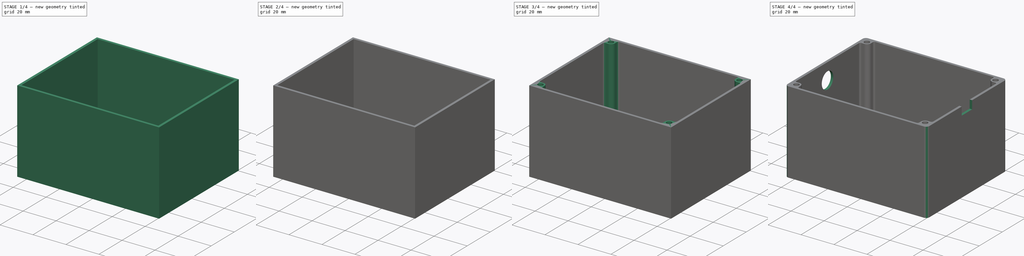
[diagram: build sequence overview — one tinted view per stage of 4, left to right]
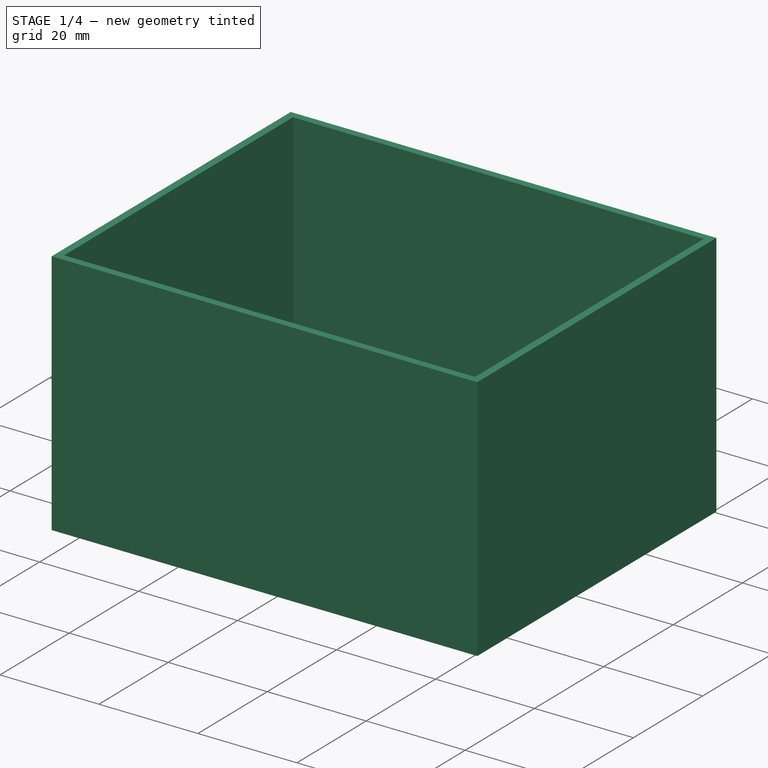
[diagram: stage 1 of 4 — iso view after this stage's code; geometry added in this stage tinted green]
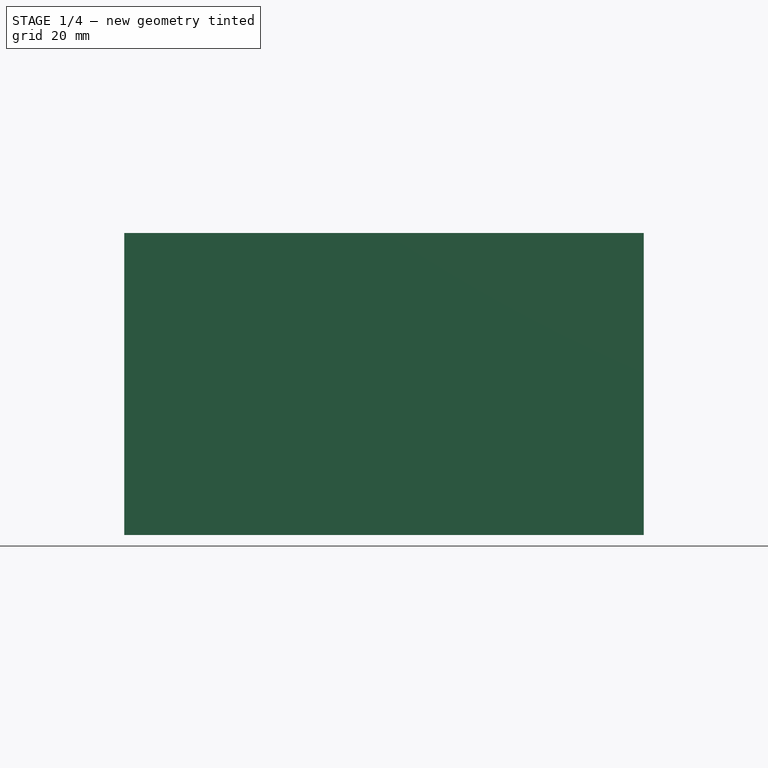
[diagram: stage 1 of 4 — front view after this stage's code; geometry added in this stage tinted green]
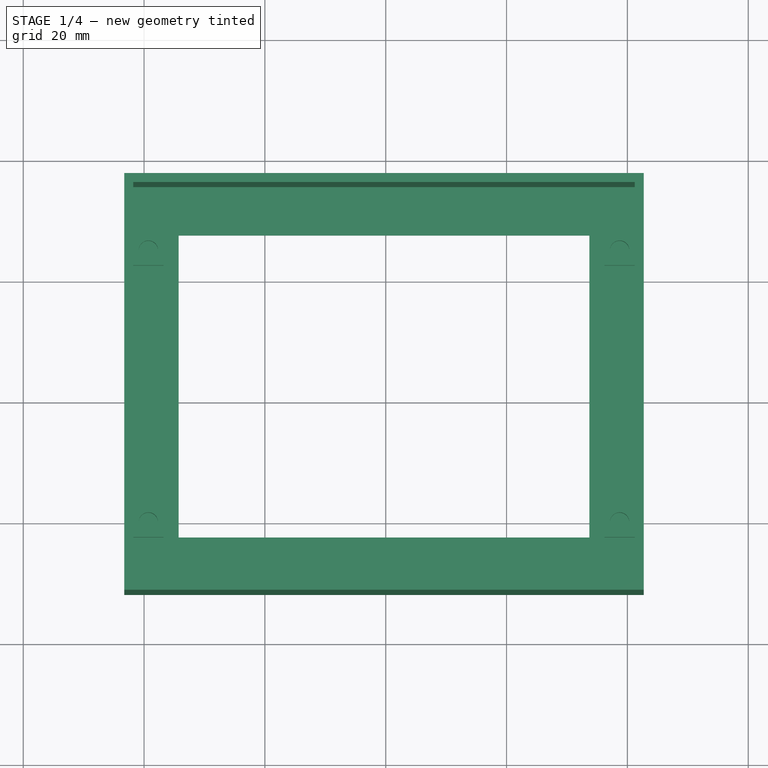
[diagram: stage 1 of 4 — top view after this stage's code; geometry added in this stage tinted green]
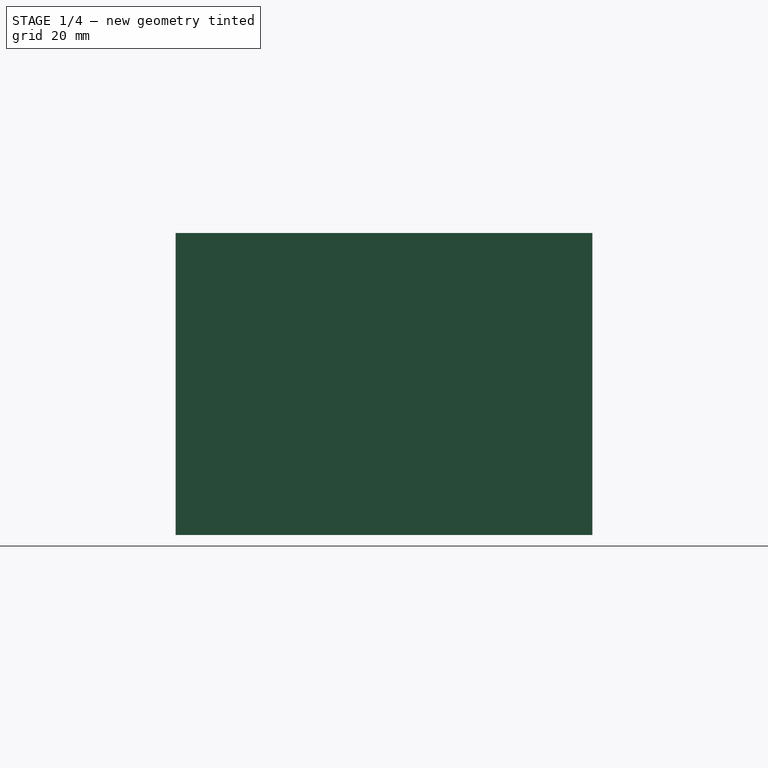
[diagram: stage 1 of 4 — right view after this stage's code; geometry added in this stage tinted green]
FCSTD DOCUMENT  (FreeCAD 1.0R39109 (Git))
Label: model
License: All rights reserved
LicenseURL: https://en.wikipedia.org/wiki/All_rights_reserved
objects: Sketcher::SketchObject×7, PartDesign::Fillet×6, PartDesign::Pocket×4, PartDesign::Pad×3, PartDesign::Chamfer×1, PartDesign::Body×1
note: 57 computed .brp shape members not serialized (recipe doc carries the construction recipe); baked Part::Feature solids carry a one-line shape summary decoded from their .brp

FEATURE [Sketcher::SketchObject] Sketch
  ArcFitTolerance = 1e-06
  AttachmentSupport = -> [XY_Plane]
  FullyConstrained = false
  MakeInternals = false
  MapMode = 5
  sketch-geometry (4):
    g0: LineSegment StartX=-43.2859 StartY=-31.8224 StartZ=0 EndX=42.7141 EndY=-31.8224 EndZ=0
    g1: LineSegment StartX=42.7141 StartY=-31.8224 StartZ=0 EndX=42.7141 EndY=37.1776 EndZ=0
    g2: LineSegment StartX=42.7141 StartY=37.1776 StartZ=0 EndX=-43.2859 EndY=37.1776 EndZ=0
    g3: LineSegment StartX=-43.2859 StartY=37.1776 StartZ=0 EndX=-43.2859 EndY=-31.8224 EndZ=0
  constraints (10):
    c: Coincident(g0,g1)
    c: Coincident(g1,g2)
    c: Coincident(g2,g3)
    c: Coincident(g3,g0)
    c: Horizontal(g0)
    c: Horizontal(g2)
    c: Vertical(g1)
    c: Vertical(g3)
    c: Distance(g2) = 86
    c: Distance(g1) = 69
FEATURE [PartDesign::Pad] Pad
  Direction = (0,0,1)
  Length = 50
  Length2 = 10
  Profile = -> Sketch
  ReferenceAxis = -> Sketch [N_Axis]
  Refine = true
  Suppressed = false
  Type = 0
FEATURE [Sketcher::SketchObject] Sketch001
  ArcFitTolerance = 1e-06
  AttachmentSupport = -> [Pad]
  ExternalGeometry = -> [Pad]
  FullyConstrained = true
  MakeInternals = false
  MapMode = 5
  Placement = pos=(0,0,50) rot=(0,0,1;0rad)
  sketch-geometry (4):
    g0: LineSegment StartX=-41.7859 StartY=35.6776 StartZ=0 EndX=-41.7859 EndY=-30.3224 EndZ=0
    g1: LineSegment StartX=-41.7859 StartY=-30.3224 StartZ=0 EndX=41.2141 EndY=-30.3224 EndZ=0
    g2: LineSegment StartX=41.2141 StartY=-30.3224 StartZ=0 EndX=41.2141 EndY=35.6776 EndZ=0
    g3: LineSegment StartX=41.2141 StartY=35.6776 StartZ=0 EndX=-41.7859 EndY=35.6776 EndZ=0
  constraints (12):
    c: Coincident(g0,g1)
    c: Coincident(g1,g2)
    c: Coincident(g2,g3)
    c: Coincident(g3,g0)
    c: Vertical(g0)
    c: Vertical(g2)
    c: Horizontal(g1)
    c: Horizontal(g3)
    c: DistanceX(g2,g-6) = 1.5
    c: DistanceX(g-5,g0) = 1.5
    c: DistanceY(g2,g-6) = 1.5
    c: DistanceY(g-5,g0) = 1.5
FEATURE [PartDesign::Pocket] Pocket
  BaseFeature = -> Pad
  Direction = (0,0,-1)
  Length = 48.5
  Length2 = 5
  Profile = -> Sketch001
  ReferenceAxis = -> Sketch001 [N_Axis]
  Refine = true
  Suppressed = false
  Type = 0
FEATURE [Sketcher::SketchObject] Sketch002
  ArcFitTolerance = 1e-06
  AttachmentSupport = -> [Pocket]
  ExternalGeometry = -> [Pocket]
  FullyConstrained = true
  MakeInternals = false
  MapMode = 5
  Placement = pos=(0,0,1.5) rot=(0,0,1;0rad)
  sketch-geometry (8):
    g0: LineSegment StartX=-34.2859 StartY=27.6776 StartZ=0 EndX=-34.2859 EndY=-22.3224 EndZ=0
    g1: LineSegment StartX=-34.2859 StartY=-22.3224 StartZ=0 EndX=33.7141 EndY=-22.3224 EndZ=0
    g2: LineSegment StartX=33.7141 StartY=-22.3224 StartZ=0 EndX=33.7141 EndY=27.6776 EndZ=0
    g3: LineSegment StartX=33.7141 StartY=27.6776 StartZ=0 EndX=-34.2859 EndY=27.6776 EndZ=0
    g4: LineSegment [constr] StartX=33.7141 StartY=-22.3224 StartZ=0 EndX=41.2141 EndY=-30.3224 EndZ=0
    g5: LineSegment [constr] StartX=-34.2859 StartY=27.6776 StartZ=0 EndX=-41.7859 EndY=35.6776 EndZ=0
    g6: LineSegment [constr] StartX=-34.2859 StartY=-22.3224 StartZ=0 EndX=-41.7859 EndY=-30.3224 EndZ=0
    g7: LineSegment [constr] StartX=33.7141 StartY=27.6776 StartZ=0 EndX=41.2141 EndY=35.6776 EndZ=0
  constraints (20):
    c: Coincident(g0,g1)
    c: Coincident(g1,g2)
    c: Coincident(g2,g3)
    c: Coincident(g3,g0)
    c: Vertical(g0)
    c: Vertical(g2)
    c: Horizontal(g1)
    c: Horizontal(g3)
    c: Distance(g3) = 68
    c: Distance(g2) = 50
    c: Coincident(g4,g1)
    c: Coincident(g4,g-5)
    c: Coincident(g5,g0)
    c: Coincident(g5,g-6)
    c: Coincident(g6,g0)
    c: Coincident(g6,g-6)
    c: Coincident(g7,g2)
    c: Coincident(g7,g-4)
    c: Equal(g5,g4)
    c: Equal(g6,g7)
FEATURE [PartDesign::Pocket] Pocket001
  BaseFeature = -> Pocket
  Direction = (0,0,-1)
  Length = 5
  Length2 = 5
  Profile = -> Sketch002 [Edge2,Edge1,Edge4,Edge3]
  ReferenceAxis = -> Sketch002 [N_Axis]
  Refine = true
  Suppressed = false
  Type = 0
FEATURE [Sketcher::SketchObject] Sketch003
  ArcFitTolerance = 1e-06
  AttachmentSupport = -> [Pocket001]
  ExternalGeometry = -> [Pocket001]
  FullyConstrained = false
  MakeInternals = false
  MapMode = 5
  Placement = pos=(0,0,1.5) rot=(0,0,1;0rad)
  sketch-geometry (32):
    g0: LineSegment StartX=-36.7859 StartY=-17.3224 StartZ=0 EndX=-41.7859 EndY=-17.3224 EndZ=0
    g1: LineSegment StartX=-41.7859 StartY=-17.3224 StartZ=0 EndX=-41.7859 EndY=-22.3224 EndZ=0
    g2: LineSegment StartX=-41.7859 StartY=-22.3224 StartZ=0 EndX=-36.7859 EndY=-22.3224 EndZ=0
    g3: LineSegment StartX=-36.7859 StartY=-22.3224 StartZ=0 EndX=-36.7859 EndY=-17.3224 EndZ=0
    g4: LineSegment StartX=41.2141 StartY=27.6776 StartZ=0 EndX=36.2141 EndY=27.6776 EndZ=0
    g5: LineSegment StartX=36.2141 StartY=27.6776 StartZ=0 EndX=36.2141 EndY=22.6776 EndZ=0
    g6: LineSegment StartX=36.2141 StartY=22.6776 StartZ=0 EndX=41.2141 EndY=22.6776 EndZ=0
    g7: LineSegment StartX=41.2141 StartY=22.6776 StartZ=0 EndX=41.2141 EndY=27.6776 EndZ=0
    g8: LineSegment StartX=41.2141 StartY=-17.3224 StartZ=0 EndX=36.2141 EndY=-17.3224 EndZ=0
    g9: LineSegment StartX=36.2141 StartY=-17.3224 StartZ=0 EndX=36.2141 EndY=-22.3224 EndZ=0
    g10: LineSegment StartX=36.2141 StartY=-22.3224 StartZ=0 EndX=41.2141 EndY=-22.3224 EndZ=0
    g11: LineSegment StartX=41.2141 StartY=-22.3224 StartZ=0 EndX=41.2141 EndY=-17.3224 EndZ=0
    g12: LineSegment StartX=-36.7859 StartY=27.6776 StartZ=0 EndX=-41.7859 EndY=27.6776 EndZ=0
    g13: LineSegment StartX=-41.7859 StartY=27.6776 StartZ=0 EndX=-41.7859 EndY=22.6776 EndZ=0
    g14: LineSegment StartX=-41.7859 StartY=22.6776 StartZ=0 EndX=-36.7859 EndY=22.6776 EndZ=0
    g15: LineSegment StartX=-36.7859 StartY=22.6776 StartZ=0 EndX=-36.7859 EndY=27.6776 EndZ=0
    g16: Circle CenterX=-39.2859 CenterY=25.1776 CenterZ=0 NormalX=0 NormalY=0 NormalZ=1 AngleXU=0 Radius=1.6
    g17: Circle CenterX=-39.2859 CenterY=-19.8224 CenterZ=0 NormalX=0 NormalY=0 NormalZ=1 AngleXU=0 Radius=1.6
    g18: Circle CenterX=38.7141 CenterY=25.1776 CenterZ=0 NormalX=0 NormalY=0 NormalZ=1 AngleXU=0 Radius=1.6
    g19: Circle CenterX=38.7141 CenterY=-19.8224 CenterZ=0 NormalX=0 NormalY=0 NormalZ=1 AngleXU=0 Radius=1.6
    g20: LineSegment [constr] StartX=38.7141 StartY=-19.8224 StartZ=0 EndX=36.2141 EndY=-17.3224 EndZ=0
    g21: LineSegment [constr] StartX=38.7141 StartY=-19.8224 StartZ=0 EndX=41.2141 EndY=-22.3224 EndZ=0
    g22: LineSegment [constr] StartX=-39.2859 StartY=25.1776 StartZ=0 EndX=-41.7859 EndY=27.6776 EndZ=0
    g23: LineSegment [constr] StartX=-39.2859 StartY=25.1776 StartZ=0 EndX=-36.7859 EndY=22.6776 EndZ=0
    g24: LineSegment [constr] StartX=-39.2859 StartY=-19.8224 StartZ=0 EndX=-41.7859 EndY=-17.3224 EndZ=0
    g25: LineSegment [constr] StartX=-39.2859 StartY=-19.8224 StartZ=0 EndX=-36.7859 EndY=-22.3224 EndZ=0
    g26: LineSegment [constr] StartX=38.7141 StartY=25.1776 StartZ=0 EndX=36.2141 EndY=27.6776 EndZ=0
    g27: LineSegment [constr] StartX=38.7141 StartY=25.1776 StartZ=0 EndX=41.2141 EndY=22.6776 EndZ=0
    g28: LineSegment [constr] StartX=38.7141 StartY=25.1776 StartZ=0 EndX=41.2141 EndY=27.6776 EndZ=0
    g29: LineSegment [constr] StartX=38.7141 StartY=-19.8224 StartZ=0 EndX=41.2141 EndY=-17.3224 EndZ=0
    g30: LineSegment [constr] StartX=-39.2859 StartY=-19.8224 StartZ=0 EndX=-36.7859 EndY=-17.3224 EndZ=0
    g31: LineSegment [constr] StartX=-39.2859 StartY=25.1776 StartZ=0 EndX=-36.7859 EndY=27.6776 EndZ=0
  constraints (80):
    c: Coincident(g0,g1)
    c: Coincident(g1,g2)
    c: Coincident(g2,g3)
    c: Coincident(g3,g0)
    c: Horizontal(g0)
    c: Horizontal(g2)
    c: Vertical(g1)
    c: Vertical(g3)
    c: Distance(g1,g3) = 5
    c: Distance(g0,g2) = 5
    c: Coincident(g4,g5)
    c: Coincident(g5,g6)
    c: Coincident(g6,g7)
    c: Coincident(g7,g4)
    c: Horizontal(g4)
    c: Horizontal(g6)
    c: Vertical(g5)
    c: Vertical(g7)
    c: Distance(g5,g7) = 5
    c: Distance(g4,g6) = 5
    c: Coincident(g8,g9)
    c: Coincident(g9,g10)
    c: Coincident(g10,g11)
    c: Coincident(g11,g8)
    c: Horizontal(g8)
    c: Horizontal(g10)
    c: Vertical(g9)
    c: Vertical(g11)
    c: Distance(g9,g11) = 5
    c: Distance(g8,g10) = 5
    c: Coincident(g12,g13)
    c: Coincident(g13,g14)
    c: Coincident(g14,g15)
    c: Coincident(g15,g12)
    c: Horizontal(g12)
    c: Horizontal(g14)
    c: Vertical(g13)
    c: Vertical(g15)
    c: Distance(g13,g15) = 5
    c: Distance(g12,g14) = 5
    c: DistanceX(g12,g-3) = 2.5
    c: DistanceY(g12,g-3) = 0
    c: DistanceX(g2,g-5) = 2.5
    c: DistanceX(g-6,g9) = 2.5
    c: DistanceX(g-4,g4) = 2.5
    c: DistanceY(g-4,g4) = 0
    c: DistanceY(g9,g-6) = 0
    c: DistanceY(g-5,g2) = 0
    c: Diameter(g19) = 3.2
    c: Coincident(g20,g19)
    c: Coincident(g20,g8)
    c: Coincident(g21,g19)
    c: Coincident(g21,g10)
    c: Coincident(g22,g12)
    c: Coincident(g23,g16)
    c: Coincident(g23,g14)
    c: Coincident(g24,g17)
    c: Coincident(g24,g0)
    c: Coincident(g25,g17)
    c: Coincident(g25,g2)
    c: Coincident(g26,g18)
    c: Coincident(g26,g4)
    c: Coincident(g27,g18)
    c: Coincident(g27,g6)
    c: Equal(g22,g20)
    c: Equal(g23,g21)
    c: Equal(g20,g21)
    c: Equal(g26,g27)
    c: Coincident(g28,g18)
    c: Coincident(g28,g4)
    c: Equal(g28,g26)
    c: Coincident(g29,g19)
    c: Coincident(g29,g8)
    c: Coincident(g30,g17)
    c: Coincident(g30,g0)
    c: Equal(g30,g25)
    c: Coincident(g31,g12)
    c: Diameter(g18) = 3.2
    c: Diameter(g16) = 3.2
    c: Diameter(g17) = 3.2
FEATURE [PartDesign::Pad] Pad001
  BaseFeature = -> Pocket001
  Direction = (0,0,1)
  Length = 4
  Length2 = 10
  Profile = -> Sketch003
  ReferenceAxis = -> Sketch003 [N_Axis]
  Refine = true
  Suppressed = false
  Type = 0
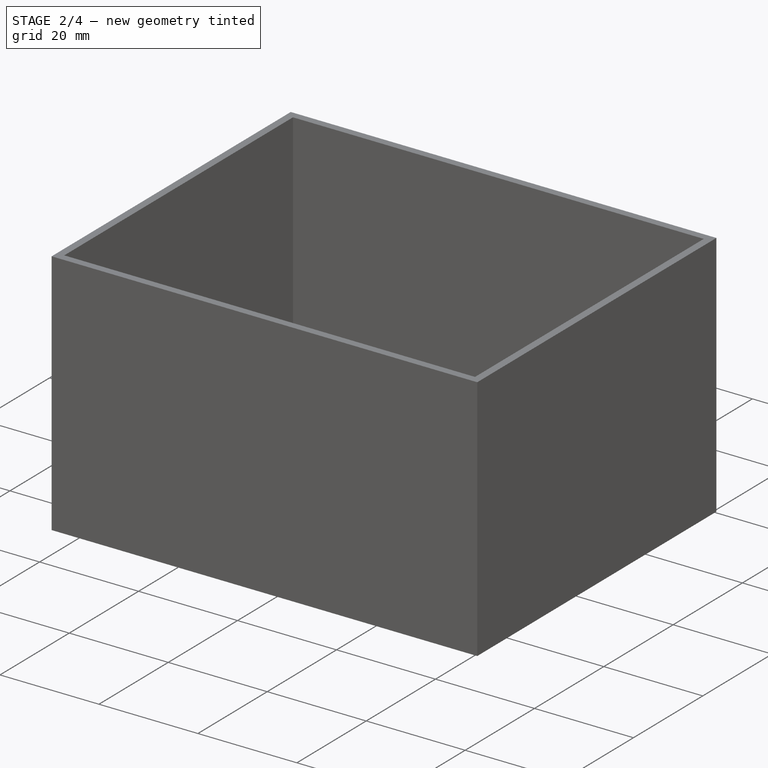
[diagram: stage 2 of 4 — iso view after this stage's code; geometry added in this stage tinted green]
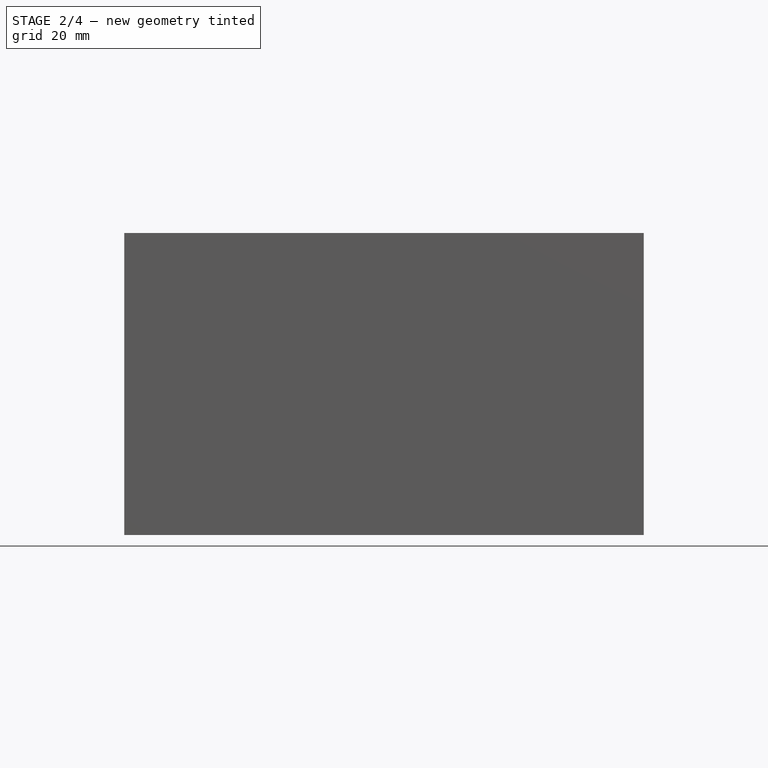
[diagram: stage 2 of 4 — front view after this stage's code; geometry added in this stage tinted green]
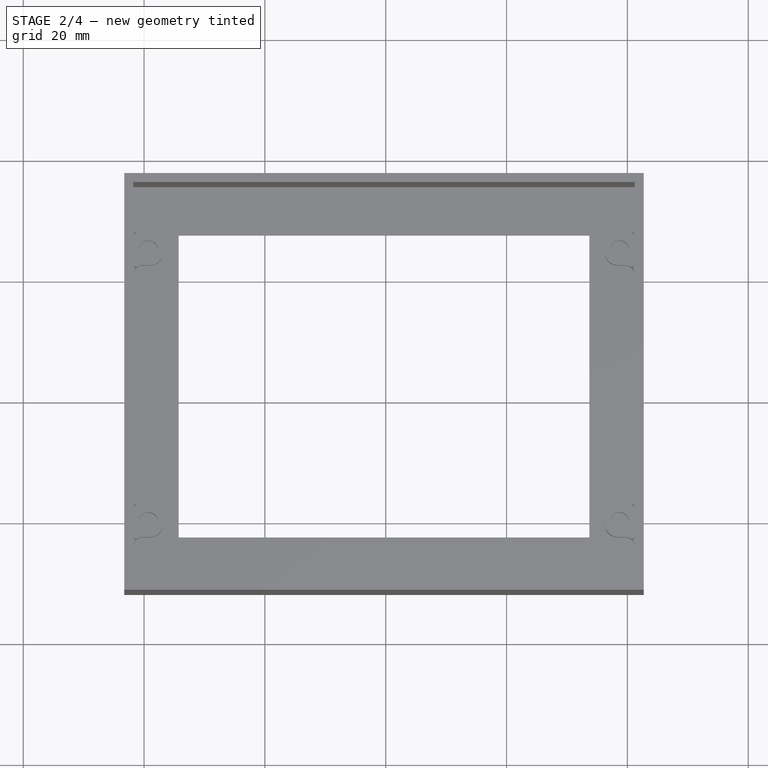
[diagram: stage 2 of 4 — top view after this stage's code; geometry added in this stage tinted green]
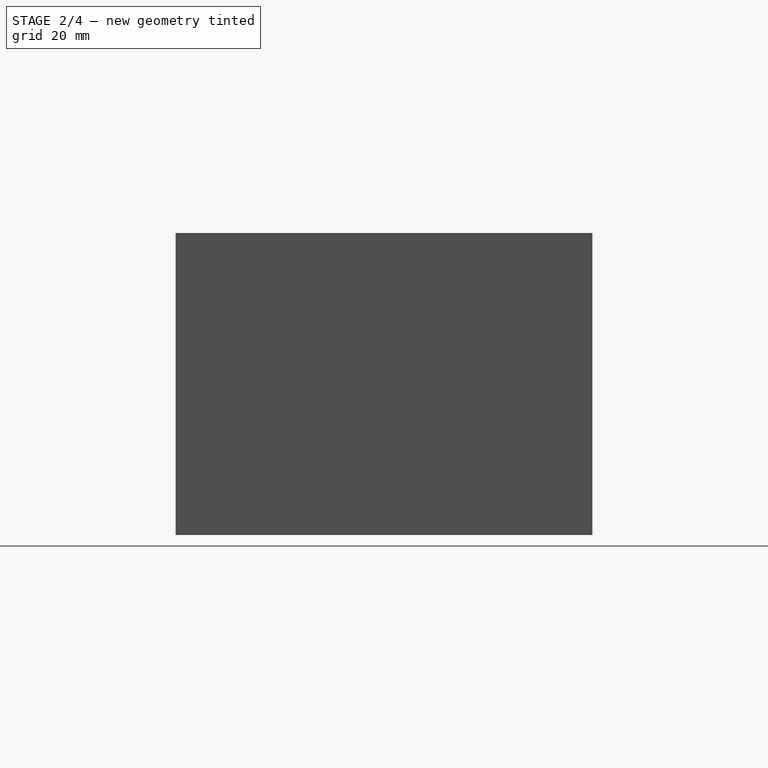
[diagram: stage 2 of 4 — right view after this stage's code; geometry added in this stage tinted green]
FEATURE [PartDesign::Fillet] Fillet
  Base = -> Pad001 [Edge76,Edge71]
  BaseFeature = -> Pad001
  Radius = 2.25
  Refine = true
  SupportTransform = false
  Suppressed = false
  UseAllEdges = false
FEATURE [PartDesign::Fillet] Fillet001
  Base = -> Fillet [Edge42,Edge46,Edge67,Edge63,Edge61,Edge65]
  BaseFeature = -> Fillet
  Radius = 2.25
  Refine = true
  SupportTransform = false
  Suppressed = false
  UseAllEdges = false
FEATURE [PartDesign::Fillet] Fillet002
  Base = -> Fillet001 [Edge66,Edge64,Edge67,Edge69,Edge42,Edge44,Edge34,Edge40]
  BaseFeature = -> Fillet001
  Radius = 1.5
  Refine = true
  SupportTransform = false
  Suppressed = false
  UseAllEdges = false
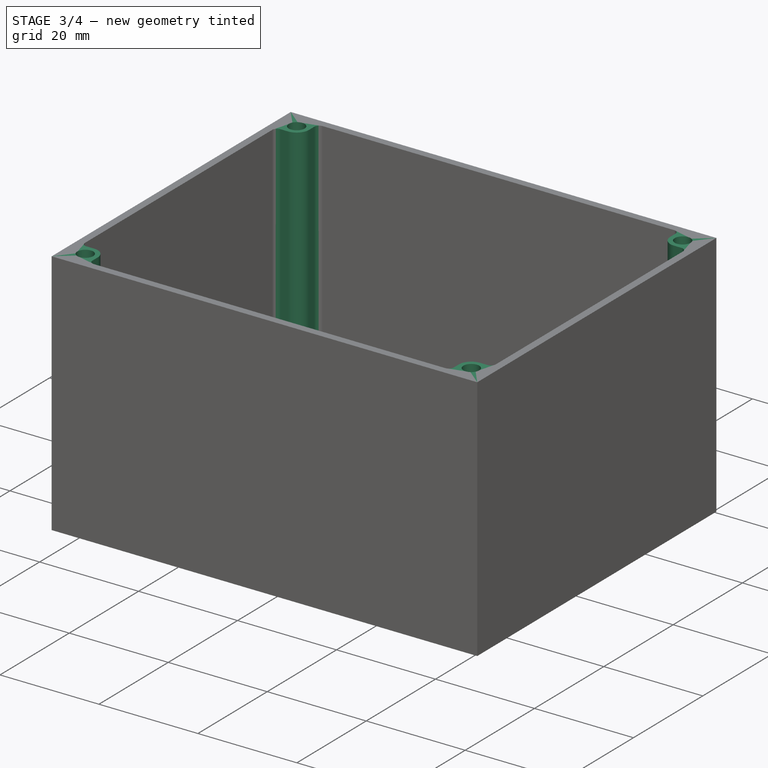
[diagram: stage 3 of 4 — iso view after this stage's code; geometry added in this stage tinted green]
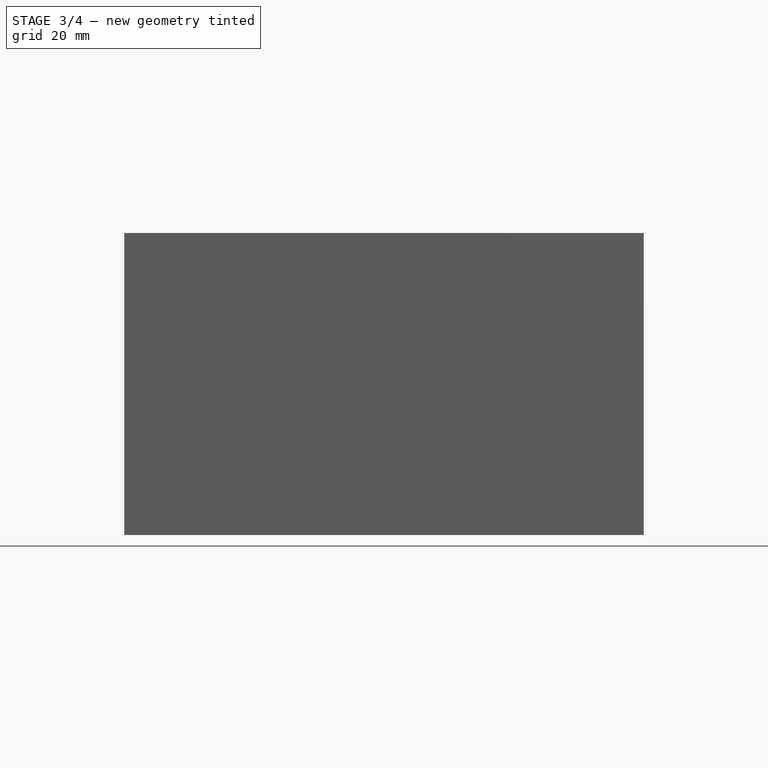
[diagram: stage 3 of 4 — front view after this stage's code; geometry added in this stage tinted green]
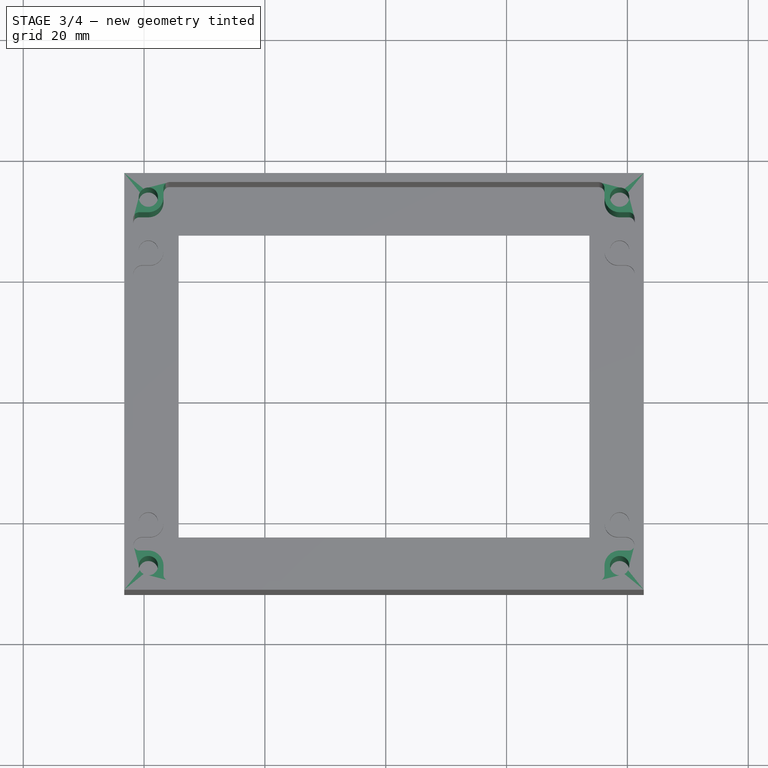
[diagram: stage 3 of 4 — top view after this stage's code; geometry added in this stage tinted green]
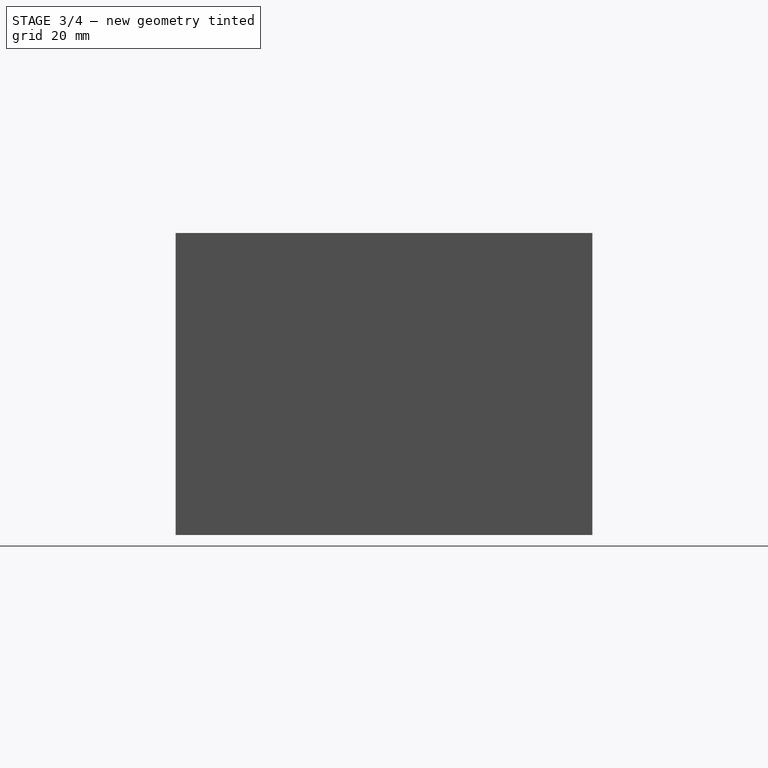
[diagram: stage 3 of 4 — right view after this stage's code; geometry added in this stage tinted green]
FEATURE [Sketcher::SketchObject] Sketch004
  ArcFitTolerance = 1e-06
  AttachmentSupport = -> [Fillet002]
  ExternalGeometry = -> [Fillet002]
  FullyConstrained = true
  MakeInternals = false
  MapMode = 5
  Placement = pos=(0,0,1.5) rot=(0,0,1;0rad)
  sketch-geometry (32):
    g0: LineSegment StartX=-41.7859 StartY=-30.3224 StartZ=0 EndX=-36.7859 EndY=-30.3224 EndZ=0
    g1: LineSegment StartX=-36.7859 StartY=-30.3224 StartZ=0 EndX=-36.7859 EndY=-25.3224 EndZ=0
    g2: LineSegment StartX=-36.7859 StartY=-25.3224 StartZ=0 EndX=-41.7859 EndY=-25.3224 EndZ=0
    g3: LineSegment StartX=-41.7859 StartY=-25.3224 StartZ=0 EndX=-41.7859 EndY=-30.3224 EndZ=0
    g4: LineSegment StartX=-41.7859 StartY=35.6776 StartZ=0 EndX=-41.7859 EndY=30.6776 EndZ=0
    g5: LineSegment StartX=-41.7859 StartY=30.6776 StartZ=0 EndX=-36.7859 EndY=30.6776 EndZ=0
    g6: LineSegment StartX=-36.7859 StartY=30.6776 StartZ=0 EndX=-36.7859 EndY=35.6776 EndZ=0
    g7: LineSegment StartX=-36.7859 StartY=35.6776 StartZ=0 EndX=-41.7859 EndY=35.6776 EndZ=0
    g8: LineSegment StartX=41.2141 StartY=35.6776 StartZ=0 EndX=36.2141 EndY=35.6776 EndZ=0
    g9: LineSegment StartX=36.2141 StartY=35.6776 StartZ=0 EndX=36.2141 EndY=30.6776 EndZ=0
    g10: LineSegment StartX=36.2141 StartY=30.6776 StartZ=0 EndX=41.2141 EndY=30.6776 EndZ=0
    g11: LineSegment StartX=41.2141 StartY=30.6776 StartZ=0 EndX=41.2141 EndY=35.6776 EndZ=0
    g12: LineSegment StartX=41.2141 StartY=-30.3224 StartZ=0 EndX=41.2141 EndY=-25.3224 EndZ=0
    g13: LineSegment StartX=41.2141 StartY=-25.3224 StartZ=0 EndX=36.2141 EndY=-25.3224 EndZ=0
    g14: LineSegment StartX=36.2141 StartY=-25.3224 StartZ=0 EndX=36.2141 EndY=-30.3224 EndZ=0
    g15: LineSegment StartX=36.2141 StartY=-30.3224 StartZ=0 EndX=41.2141 EndY=-30.3224 EndZ=0
    g16: Circle CenterX=38.7141 CenterY=-27.8224 CenterZ=0 NormalX=0 NormalY=0 NormalZ=1 AngleXU=0 Radius=1.6
    g17: Circle CenterX=-39.2859 CenterY=-27.8224 CenterZ=0 NormalX=0 NormalY=0 NormalZ=1 AngleXU=0 Radius=1.6
    g18: Circle CenterX=-39.2859 CenterY=33.1776 CenterZ=0 NormalX=0 NormalY=0 NormalZ=1 AngleXU=0 Radius=1.6
    g19: Circle CenterX=38.7141 CenterY=33.1776 CenterZ=0 NormalX=0 NormalY=0 NormalZ=1 AngleXU=0 Radius=1.6
    g20: LineSegment [constr] StartX=-39.2859 StartY=33.1776 StartZ=0 EndX=-41.7859 EndY=35.6776 EndZ=0
    g21: LineSegment [constr] StartX=-39.2859 StartY=33.1776 StartZ=0 EndX=-36.7859 EndY=30.6776 EndZ=0
    g22: LineSegment [constr] StartX=-39.2859 StartY=33.1776 StartZ=0 EndX=-36.7859 EndY=35.6776 EndZ=0
    g23: LineSegment [constr] StartX=-39.2859 StartY=-27.8224 StartZ=0 EndX=-41.7859 EndY=-25.3224 EndZ=0
    g24: LineSegment [constr] StartX=-39.2859 StartY=-27.8224 StartZ=0 EndX=-36.7859 EndY=-25.3224 EndZ=0
    g25: LineSegment [constr] StartX=-39.2859 StartY=-27.8224 StartZ=0 EndX=-36.7859 EndY=-30.3224 EndZ=0
    g26: LineSegment [constr] StartX=38.7141 StartY=-27.8224 StartZ=0 EndX=36.2141 EndY=-25.3224 EndZ=0
    g27: LineSegment [constr] StartX=38.7141 StartY=-27.8224 StartZ=0 EndX=41.2141 EndY=-25.3224 EndZ=0
    g28: LineSegment [constr] StartX=38.7141 StartY=-27.8224 StartZ=0 EndX=41.2141 EndY=-30.3224 EndZ=0
    g29: LineSegment [constr] StartX=38.7141 StartY=33.1776 StartZ=0 EndX=36.2141 EndY=35.6776 EndZ=0
    g30: LineSegment [constr] StartX=38.7141 StartY=33.1776 StartZ=0 EndX=41.2141 EndY=35.6776 EndZ=0
    g31: LineSegment [constr] StartX=38.7141 StartY=33.1776 StartZ=0 EndX=41.2141 EndY=30.6776 EndZ=0
  constraints (80):
    c: Coincident(g0,g1)
    c: Coincident(g1,g2)
    c: Coincident(g2,g3)
    c: Coincident(g3,g0)
    c: Horizontal(g0)
    c: Horizontal(g2)
    c: Vertical(g1)
    c: Vertical(g3)
    c: Distance(g1,g3) = 5
    c: Distance(g0,g2) = 5
    c: Coincident(g0,g-5)
    c: Coincident(g4,g5)
    c: Coincident(g5,g6)
    c: Coincident(g6,g7)
    c: Coincident(g7,g4)
    c: Vertical(g4)
    c: Vertical(g6)
    c: Horizontal(g5)
    c: Horizontal(g7)
    c: Distance(g4,g6) = 5
    c: Distance(g5,g7) = 5
    c: Coincident(g4,g-5)
    c: Coincident(g8,g9)
    c: Coincident(g9,g10)
    c: Coincident(g10,g11)
    c: Coincident(g11,g8)
    c: Horizontal(g8)
    c: Horizontal(g10)
    c: Vertical(g9)
    c: Vertical(g11)
    c: Distance(g9,g11) = 5
    c: Distance(g8,g10) = 5
    c: Coincident(g8,g-4)
    c: Coincident(g12,g13)
    c: Coincident(g13,g14)
    c: Coincident(g14,g15)
    c: Coincident(g15,g12)
    c: Vertical(g12)
    c: Vertical(g14)
    c: Horizontal(g13)
    c: Horizontal(g15)
    c: Distance(g12,g14) = 5
    c: Distance(g13,g15) = 5
    c: Coincident(g12,g-6)
    c: Diameter(g16) = 3.2
    c: Diameter(g17) = 3.2
    c: Diameter(g18) = 3.2
    c: Diameter(g19) = 3.2
    c: Coincident(g20,g18)
    c: Coincident(g20,g4)
    c: Coincident(g21,g18)
    c: Coincident(g21,g5)
    c: Coincident(g22,g18)
    c: Coincident(g22,g6)
    c: Equal(g20,g21)
    c: Equal(g20,g22)
    c: Coincident(g23,g17)
    c: Coincident(g23,g2)
    c: Coincident(g24,g17)
    c: Coincident(g24,g1)
    c: Coincident(g25,g17)
    c: Coincident(g25,g0)
    c: Equal(g23,g24)
    c: Equal(g23,g25)
    c: Coincident(g26,g16)
    c: Coincident(g26,g13)
    c: Coincident(g27,g16)
    c: Coincident(g27,g12)
    c: Coincident(g28,g16)
    c: Coincident(g28,g12)
    c: Equal(g26,g27)
    c: Equal(g26,g28)
    c: Coincident(g29,g19)
    c: Coincident(g29,g8)
    c: Coincident(g30,g19)
    c: Coincident(g30,g8)
    c: Coincident(g31,g19)
    c: Coincident(g31,g10)
    c: Equal(g29,g31)
    c: Equal(g29,g30)
FEATURE [PartDesign::Pad] Pad002
  BaseFeature = -> Fillet002
  Direction = (0,0,1)
  Length = 48.5
  Length2 = 10
  Profile = -> Sketch004
  ReferenceAxis = -> Sketch004 [N_Axis]
  Refine = true
  Suppressed = false
  Type = 0
FEATURE [PartDesign::Fillet] Fillet003
  Base = -> Pad002 [Edge73,Edge79,Edge123,Edge117]
  BaseFeature = -> Pad002
  Radius = 2.5
  Refine = true
  SupportTransform = false
  Suppressed = false
  UseAllEdges = false
FEATURE [PartDesign::Fillet] Fillet004
  Base = -> Fillet003 [Edge92,Edge142,Edge82,Edge71,Edge54,Edge66,Edge137,Edge65]
  BaseFeature = -> Fillet003
  Radius = 1
  Refine = true
  SupportTransform = false
  Suppressed = false
  UseAllEdges = false
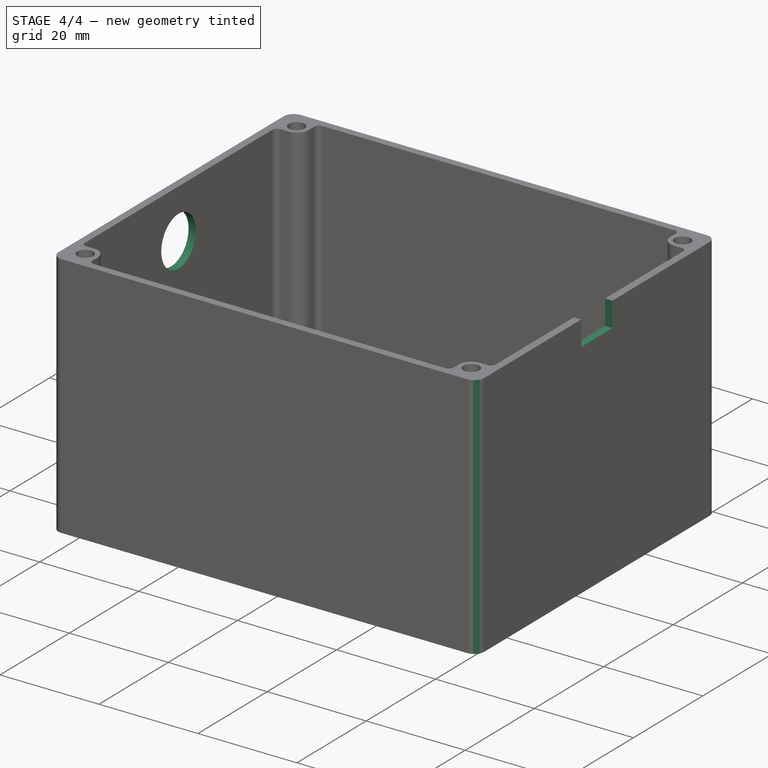
[diagram: stage 4 of 4 — iso view after this stage's code; geometry added in this stage tinted green]
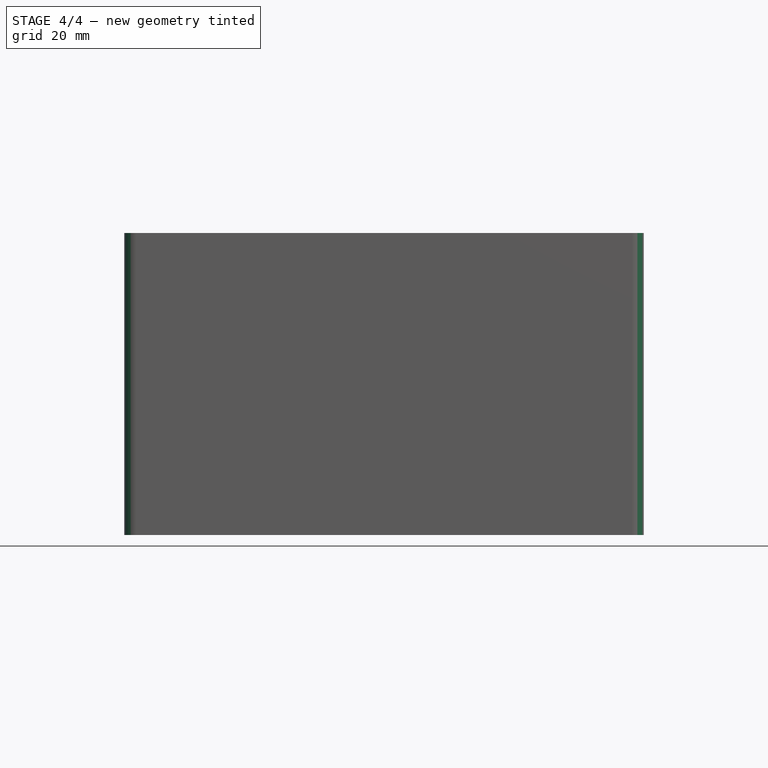
[diagram: stage 4 of 4 — front view after this stage's code; geometry added in this stage tinted green]
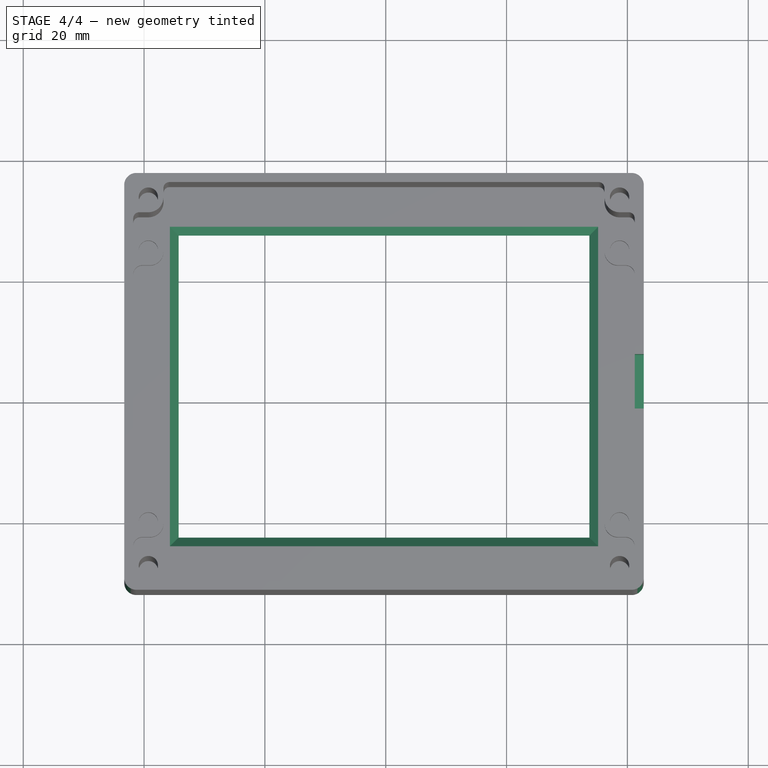
[diagram: stage 4 of 4 — top view after this stage's code; geometry added in this stage tinted green]
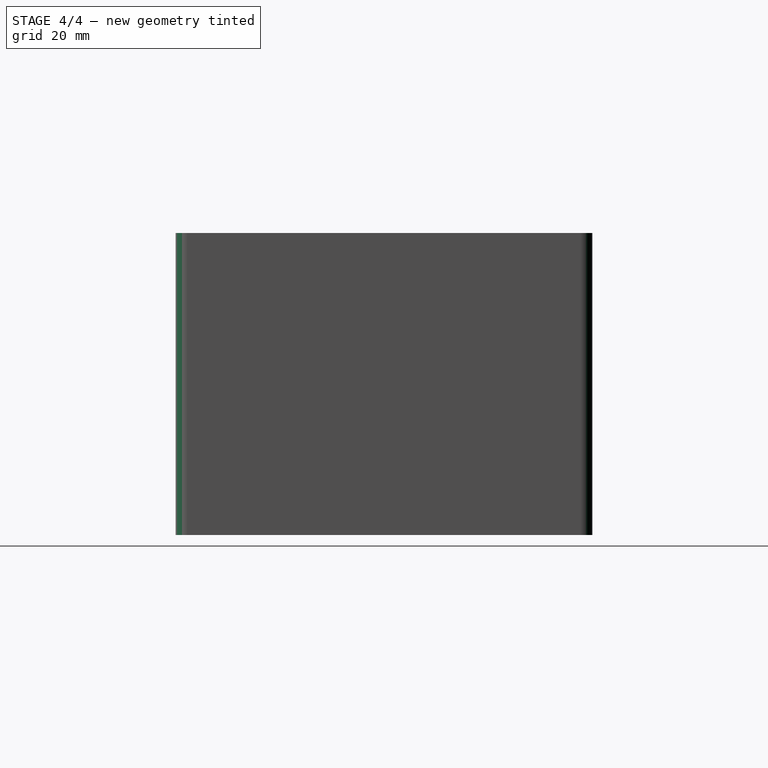
[diagram: stage 4 of 4 — right view after this stage's code; geometry added in this stage tinted green]
FEATURE [PartDesign::Fillet] Fillet005
  Base = -> Fillet004 [Edge200,Edge199,Edge198,Edge197]
  BaseFeature = -> Fillet004
  Radius = 2
  Refine = true
  SupportTransform = false
  Suppressed = false
  UseAllEdges = false
FEATURE [PartDesign::Chamfer] Chamfer
  Angle = 45
  Base = -> Fillet005 [Edge158,Edge160,Edge157,Edge159]
  BaseFeature = -> Fillet005
  ChamferType = 0
  FlipDirection = false
  Refine = true
  Size = 1.45
  Size2 = 1
  SupportTransform = false
  Suppressed = false
  UseAllEdges = false
FEATURE [Sketcher::SketchObject] Sketch006
  ArcFitTolerance = 1e-06
  AttachmentSupport = -> [Fillet005]
  ExternalGeometry = -> [Fillet005]
  FullyConstrained = true
  MakeInternals = false
  MapMode = 5
  Placement = pos=(-41.7859,0,0) rot=(0.57735,0.57735,0.57735;2.0944rad)
  sketch-geometry (1):
    g0: Circle CenterX=2.67761 CenterY=40 CenterZ=0 NormalX=0 NormalY=0 NormalZ=1 AngleXU=0 Radius=5
  constraints (3):
    c: Diameter(g0) = 10
    c: DistanceY(g0,g-5) = 10
    c: DistanceX(g0,g-5) = 27
FEATURE [PartDesign::Pocket] Pocket002
  BaseFeature = -> Chamfer
  Direction = (-1,0,0)
  Length = 5
  Length2 = 5
  Profile = -> Sketch006
  ReferenceAxis = -> Sketch006 [N_Axis]
  Refine = true
  Suppressed = false
  Type = 0
FEATURE [Sketcher::SketchObject] Sketch007
  ArcFitTolerance = 1e-06
  AttachmentSupport = -> [Pocket002]
  ExternalGeometry = -> [Pocket002]
  FullyConstrained = true
  MakeInternals = false
  MapMode = 5
  Placement = pos=(41.2141,0,0) rot=(0.57735,-0.57735,-0.57735;2.0944rad)
  sketch-geometry (4):
    g0: LineSegment StartX=1.82239 StartY=50 StartZ=0 EndX=-7.17761 EndY=50 EndZ=0
    g1: LineSegment StartX=-7.17761 StartY=50 StartZ=0 EndX=-7.17761 EndY=45 EndZ=0
    g2: LineSegment StartX=-7.17761 StartY=45 StartZ=0 EndX=1.82239 EndY=45 EndZ=0
    g3: LineSegment StartX=1.82239 StartY=45 StartZ=0 EndX=1.82239 EndY=50 EndZ=0
  constraints (12):
    c: Coincident(g0,g1)
    c: Coincident(g1,g2)
    c: Coincident(g2,g3)
    c: Coincident(g3,g0)
    c: Horizontal(g0)
    c: Horizontal(g2)
    c: Vertical(g1)
    c: Vertical(g3)
    c: Distance(g1,g3) = 9
    c: Distance(g0,g2) = 5
    c: PointOnObject(g0,g-4)
    c: DistanceX(g0,g-5) = 22.5
FEATURE [PartDesign::Pocket] Pocket003
  BaseFeature = -> Pocket002
  Direction = (1,0,0)
  Length = 5
  Length2 = 5
  Profile = -> Sketch007
  ReferenceAxis = -> Sketch007 [N_Axis]
  Refine = true
  Suppressed = false
  Type = 0
FEATURE [PartDesign::Body] Body
  AllowCompound = false
  Group = -> [Sketch,Pad,Sketch001,Pocket,Sketch002,Pocket001,Sketch003,Pad001,Fillet,Fillet001,Fillet002,Sketch004,Pad002,Fillet003,Fillet004,Fillet005,Chamfer,Sketch006,Pocket002,Sketch007,Pocket003]
  Origin = -> Origin
  Tip = -> Pocket003
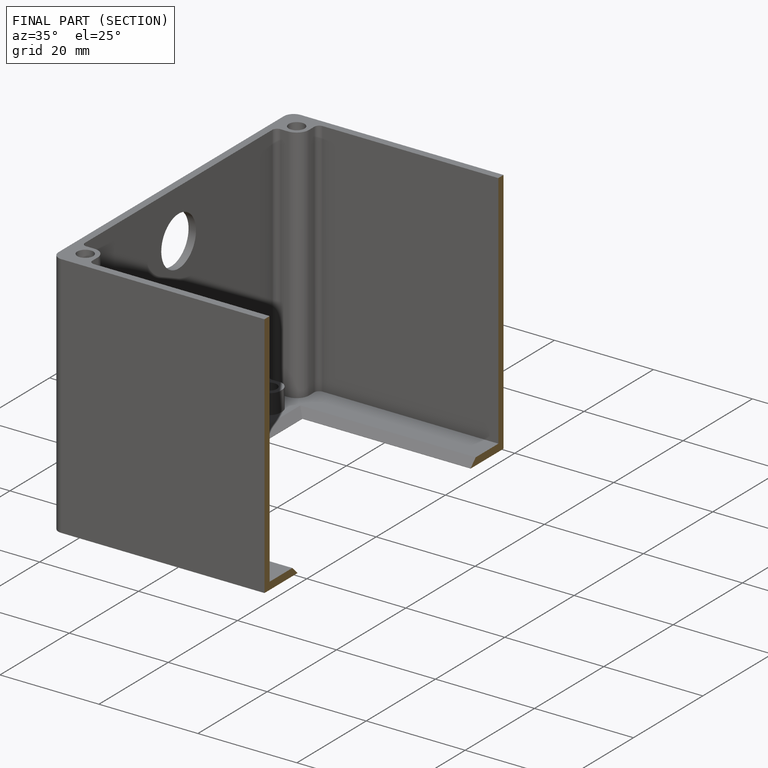
[diagram: finished part — half-section view (interior)]
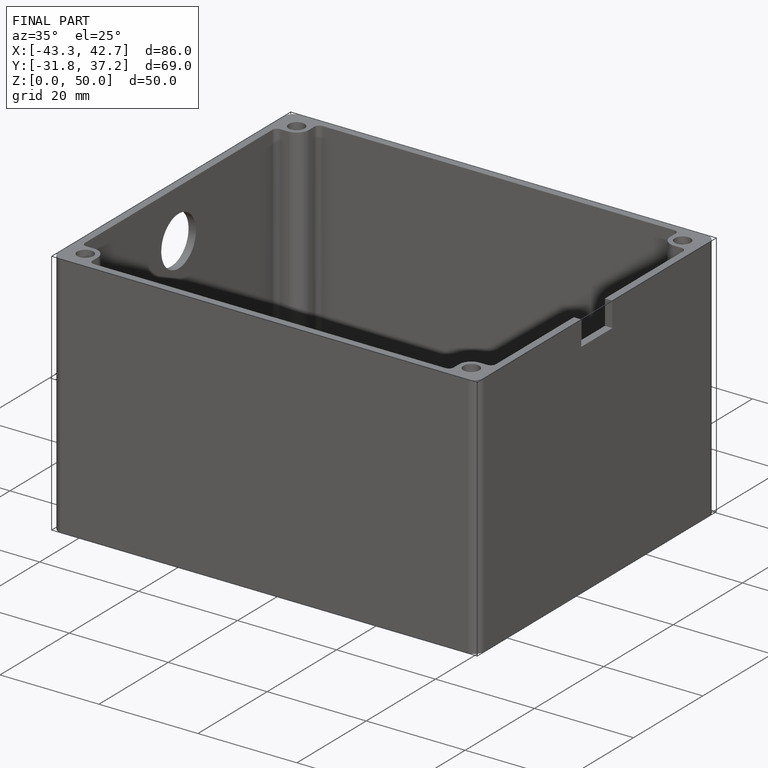
[diagram: finished part — iso view with bounding-box wireframe]
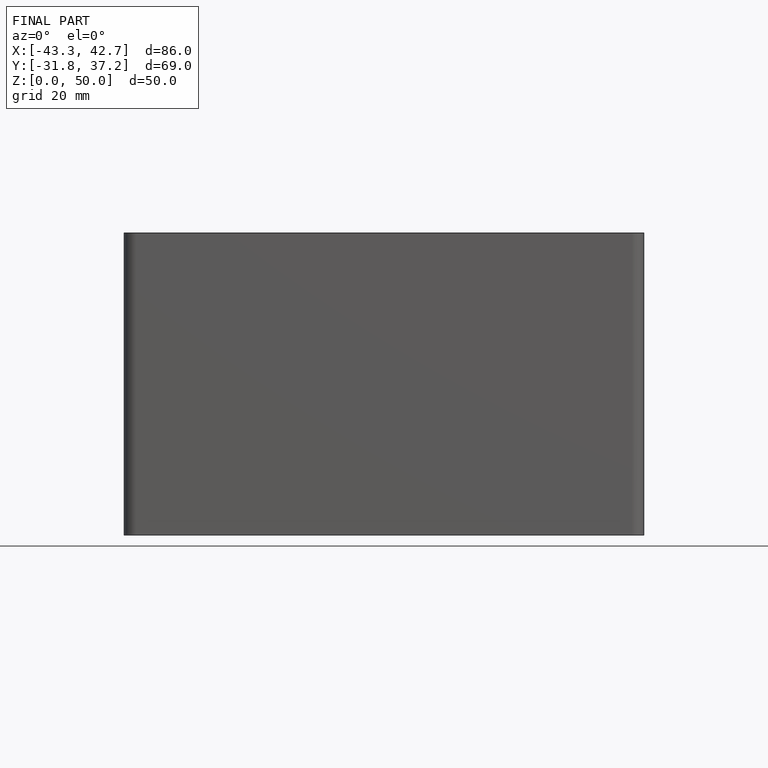
[diagram: finished part — front view with bounding-box wireframe]
